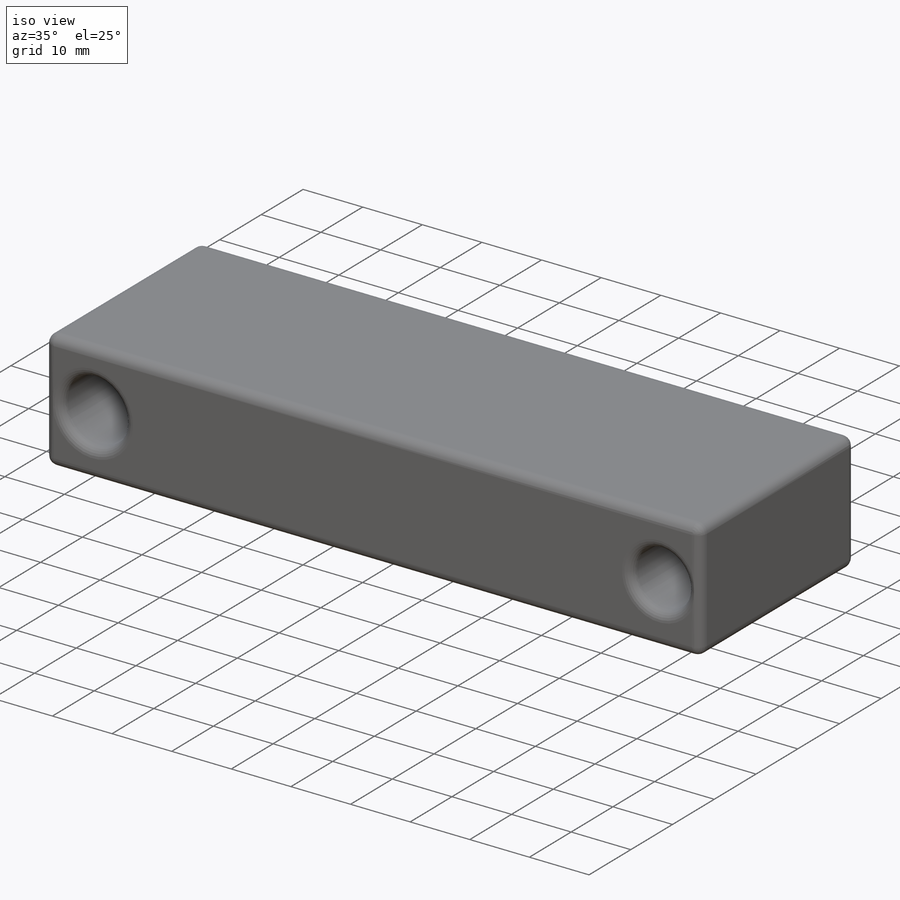
[diagram: iso view]
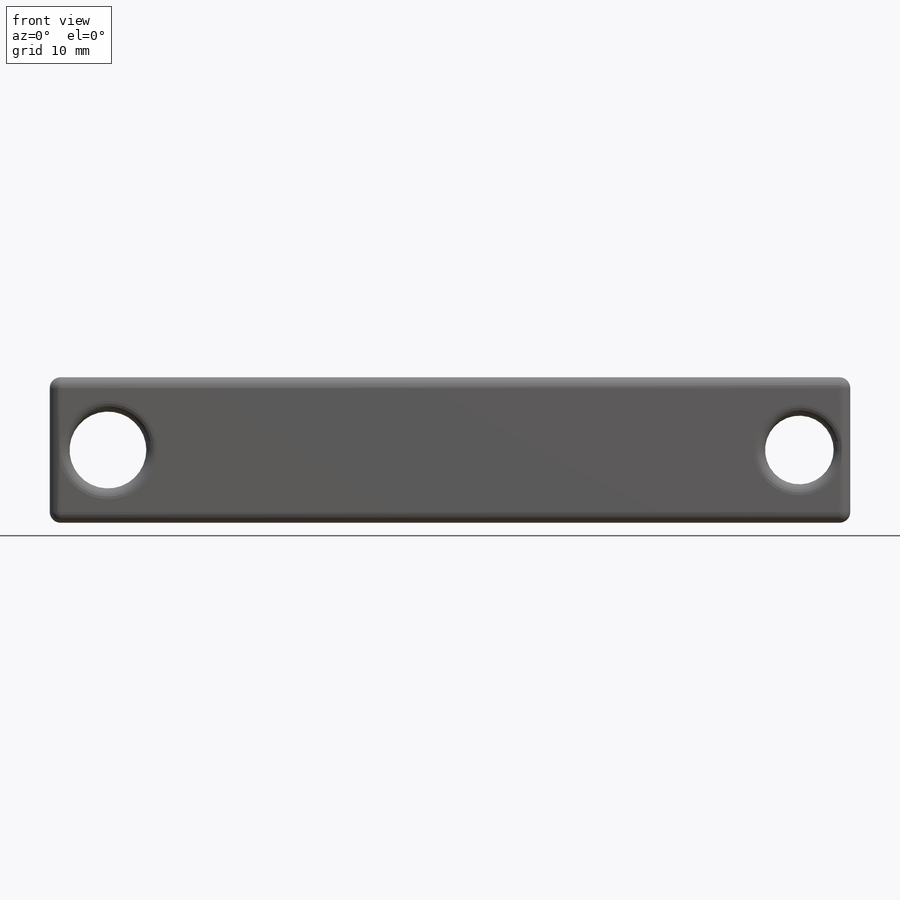
[diagram: front view]
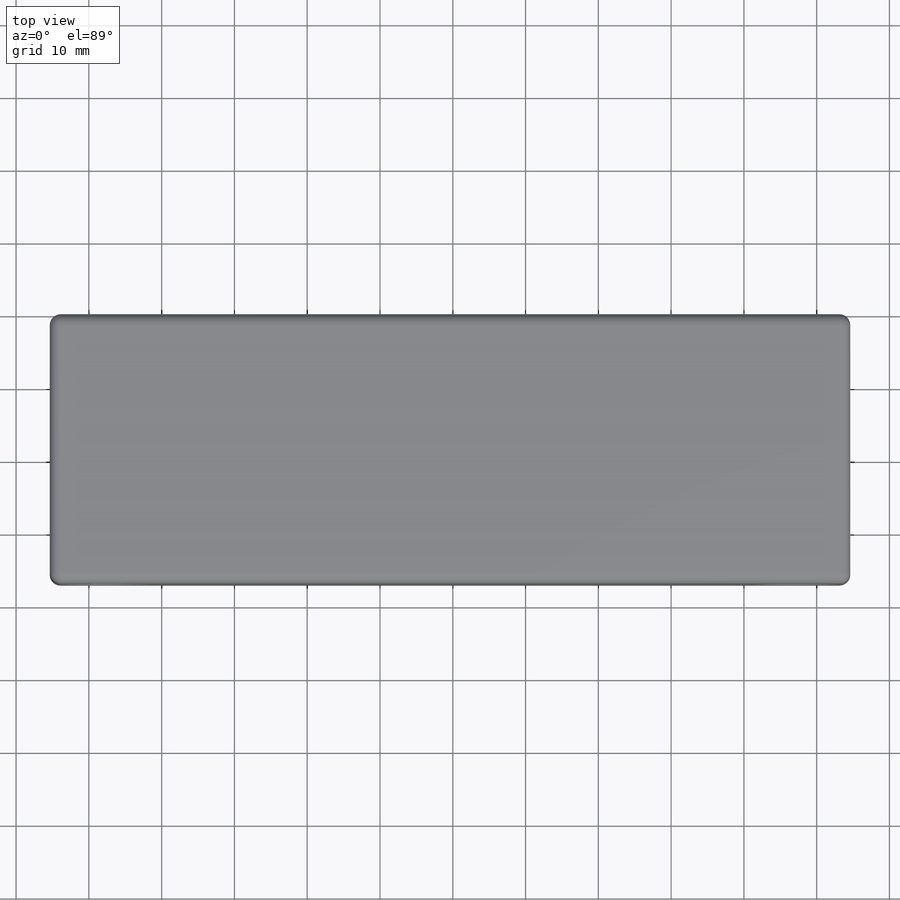
[diagram: top view]
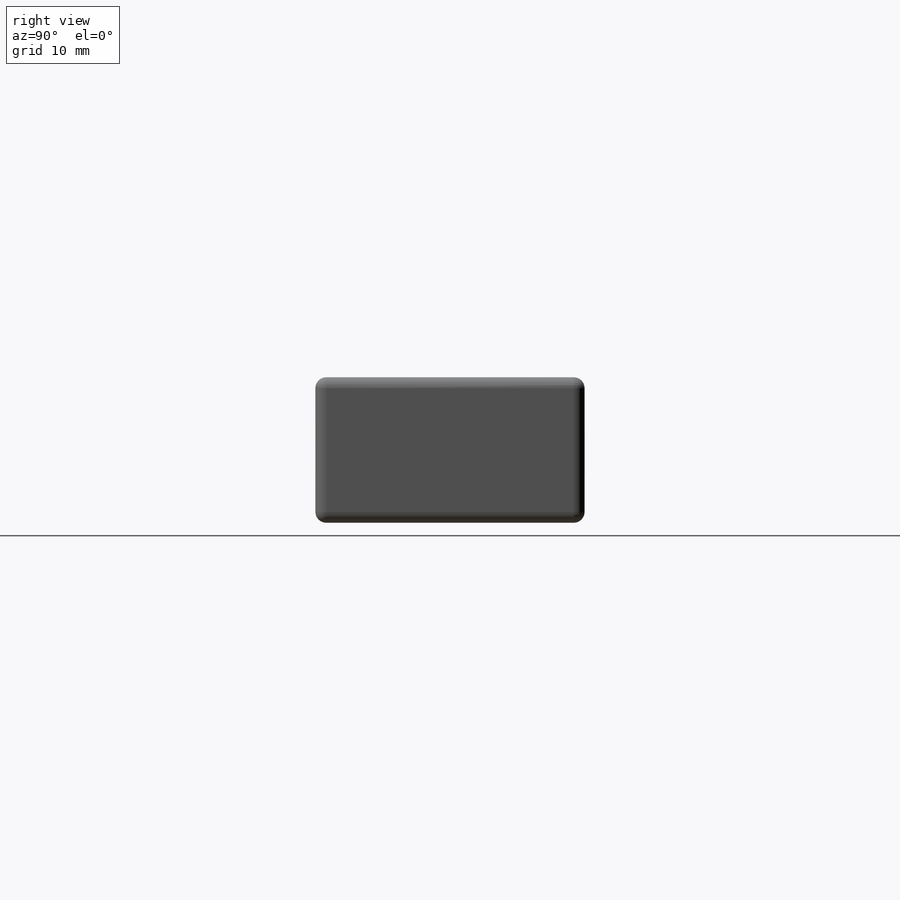
[diagram: right view]
SOLIDWORKS PART (.sldprt)
format: sldprt  version: not decoded by parser v0  size: 184,320 bytes
history: native  units: mm
features: sketch x2, material x1, extrude x1, cut_extrude x1, fillet x1 (+14 scaffold rows collapsed)
feature tree (20):
  scaffold x14  (default folders/planes/origin — collapsed)
  material  "Material <not specified>"
  sketch  "Sketch1"  dims[D1=110.0mm D2=20.0mm]
  extrude  "Extrude1"  Depth=37mm
  sketch  "Sketch2"  dims[D1=95.0mm D2=7.0mm D3=10.0mm D4=10.0mm]
  cut_extrude  "Extrude2"  Depth=110mm
  fillet  "Fillet1"  Radius=1.5mm
decode coverage: 5 of 5 modeling features carry decoded parameters
note: suppression state not decoded; provenance and decode notes live in map.json
